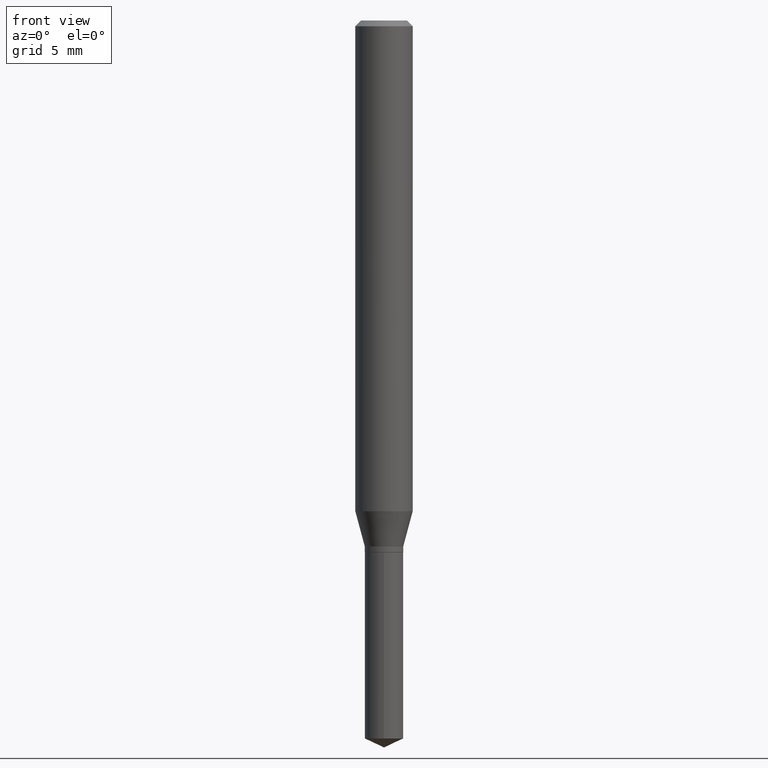
[diagram: clean part render]
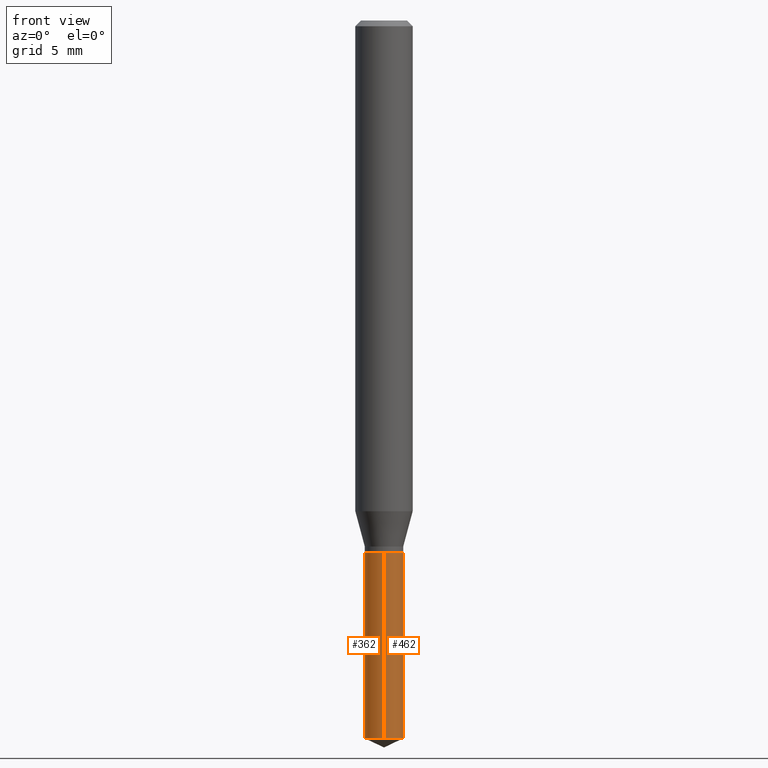
[diagram: same view with one multi-face feature highlighted, each face labeled with its STEP entity id]
A machine part, front view. The highlighted faces form ONE feature: a constant-radius fillet chain: 2 tangent blend faces with common blend radius 1.0046 mm. The faces share edges in the B-rep.
Their STEP definitions:
[1] entity #462 (Cylinder):
#1 = CARTESIAN_POINT ( 'NONE',  ( 2.810196519931463098E-16, 0.03954999999999617849, -1.094500000000000028 ) ) ;
#31 = DIRECTION ( 'NONE',  ( -2.445458899330790108E-29, 3.491495526022433205E-15, 1.000000000000000000 ) ) ;
#55 = EDGE_LOOP ( 'NONE', ( #273, #395, #119, #69 ) ) ;
#69 = ORIENTED_EDGE ( 'NONE', *, *, #412, .F. ) ;
#78 = LINE ( 'NONE', #210, #336 ) ;
#80 = VERTEX_POINT ( 'NONE', #215 ) ;
#84 = VECTOR ( 'NONE', #133, 39.37007874015748143 ) ;
#91 = FACE_OUTER_BOUND ( 'NONE', #55, .T. ) ;
#113 = AXIS2_PLACEMENT_3D ( 'NONE', #154, #31, #351 ) ;
#119 = ORIENTED_EDGE ( 'NONE', *, *, #217, .F. ) ;
#121 = AXIS2_PLACEMENT_3D ( 'NONE', #420, #315, #455 ) ;
#132 = DIRECTION ( 'NONE',  ( -2.445458899330790108E-29, 3.491495526022433205E-15, 1.000000000000000000 ) ) ;
#133 = DIRECTION ( 'NONE',  ( -2.445458899330790108E-29, 3.491495526022433599E-15, 1.000000000000000000 ) ) ;
#140 = LINE ( 'NONE', #1, #84 ) ;
#142 = DIRECTION ( 'NONE',  ( -6.982962677686265922E-15, -1.000000000000000000, 3.453663708804378272E-15 ) ) ;
#154 = CARTESIAN_POINT ( 'NONE',  ( 2.676565608369631794E-29, -3.821426325363822773E-15, -1.094499999999999806 ) ) ;
#208 = AXIS2_PLACEMENT_3D ( 'NONE', #440, #132, #142 ) ;
#210 = CARTESIAN_POINT ( 'NONE',  ( -2.761761739024651013E-16, -0.03955000000000382515, -1.094499999999999806 ) ) ;
#215 = CARTESIAN_POINT ( 'NONE',  ( 2.810196519931557268E-16, 0.03954999999999617849, -1.094500000000000028 ) ) ;
#217 = EDGE_CURVE ( 'NONE', #441, #80, #250, .T. ) ;
#250 = CIRCLE ( 'NONE', #208, 0.03955000000000000182 ) ;
#256 = DIRECTION ( 'NONE',  ( -2.445458899330790108E-29, 3.491495526022433599E-15, 1.000000000000000000 ) ) ;
#273 = ORIENTED_EDGE ( 'NONE', *, *, #300, .T. ) ;
#297 = CARTESIAN_POINT ( 'NONE',  ( 2.810196519931557761E-16, 0.03954999999999485316, -1.477657532119970085 ) ) ;
#300 = EDGE_CURVE ( 'NONE', #319, #461, #343, .T. ) ;
#315 = DIRECTION ( 'NONE',  ( -2.445458899330790108E-29, 3.491495526022433205E-15, 1.000000000000000000 ) ) ;
#319 = VERTEX_POINT ( 'NONE', #478 ) ;
#336 = VECTOR ( 'NONE', #256, 39.37007874015748143 ) ;
#343 = CIRCLE ( 'NONE', #121, 0.03955000000000000182 ) ;
#351 = DIRECTION ( 'NONE',  ( -6.982962677686265922E-15, -1.000000000000000000, 3.453663708804378272E-15 ) ) ;
#383 = CYLINDRICAL_SURFACE ( 'NONE', #113, 0.03955000000000000182 ) ;
#395 = ORIENTED_EDGE ( 'NONE', *, *, #402, .T. ) ;
#402 = EDGE_CURVE ( 'NONE', #461, #80, #140, .T. ) ;
#412 = EDGE_CURVE ( 'NONE', #319, #441, #78, .T. ) ;
#420 = CARTESIAN_POINT ( 'NONE',  ( 3.613561605138035759E-29, -5.159219134522494215E-15, -1.477657532119969863 ) ) ;
#440 = CARTESIAN_POINT ( 'NONE',  ( 2.676565608369631794E-29, -3.821426325363822773E-15, -1.094499999999999806 ) ) ;
#441 = VERTEX_POINT ( 'NONE', #465 ) ;
#455 = DIRECTION ( 'NONE',  ( -6.982962677686265922E-15, -1.000000000000000000, 6.907327417608756543E-15 ) ) ;
#461 = VERTEX_POINT ( 'NONE', #297 ) ;
#462 = ADVANCED_FACE ( 'NONE', ( #91 ), #383, .T. ) ;
#465 = CARTESIAN_POINT ( 'NONE',  ( -2.761761739024651013E-16, -0.03955000000000382515, -1.094499999999999806 ) ) ;
#478 = CARTESIAN_POINT ( 'NONE',  ( -2.761761739024557829E-16, -0.03955000000000517130, -1.477657532119969641 ) ) ;
[2] entity #362 (Cylinder):
#1 = CARTESIAN_POINT ( 'NONE',  ( 2.810196519931463098E-16, 0.03954999999999617849, -1.094500000000000028 ) ) ;
#5 = CARTESIAN_POINT ( 'NONE',  ( 2.676565608369631794E-29, -3.821426325363822773E-15, -1.094499999999999806 ) ) ;
#78 = LINE ( 'NONE', #210, #336 ) ;
#79 = DIRECTION ( 'NONE',  ( -6.982962677686265922E-15, -1.000000000000000000, 3.453663708804378272E-15 ) ) ;
#80 = VERTEX_POINT ( 'NONE', #215 ) ;
#84 = VECTOR ( 'NONE', #133, 39.37007874015748143 ) ;
#88 = ORIENTED_EDGE ( 'NONE', *, *, #402, .F. ) ;
#112 = CIRCLE ( 'NONE', #159, 0.03955000000000000182 ) ;
#114 = EDGE_CURVE ( 'NONE', #461, #319, #112, .T. ) ;
#122 = FACE_OUTER_BOUND ( 'NONE', #153, .T. ) ;
#133 = DIRECTION ( 'NONE',  ( -2.445458899330790108E-29, 3.491495526022433599E-15, 1.000000000000000000 ) ) ;
#140 = LINE ( 'NONE', #1, #84 ) ;
#143 = DIRECTION ( 'NONE',  ( -6.982962677686265922E-15, -1.000000000000000000, 6.907327417608756543E-15 ) ) ;
#153 = EDGE_LOOP ( 'NONE', ( #88, #161, #196, #237 ) ) ;
#159 = AXIS2_PLACEMENT_3D ( 'NONE', #382, #484, #143 ) ;
#161 = ORIENTED_EDGE ( 'NONE', *, *, #114, .T. ) ;
#196 = ORIENTED_EDGE ( 'NONE', *, *, #412, .T. ) ;
#198 = DIRECTION ( 'NONE',  ( -2.445458899330790108E-29, 3.491495526022433205E-15, 1.000000000000000000 ) ) ;
#200 = CYLINDRICAL_SURFACE ( 'NONE', #326, 0.03955000000000000182 ) ;
#210 = CARTESIAN_POINT ( 'NONE',  ( -2.761761739024651013E-16, -0.03955000000000382515, -1.094499999999999806 ) ) ;
#215 = CARTESIAN_POINT ( 'NONE',  ( 2.810196519931557268E-16, 0.03954999999999617849, -1.094500000000000028 ) ) ;
#237 = ORIENTED_EDGE ( 'NONE', *, *, #286, .F. ) ;
#256 = DIRECTION ( 'NONE',  ( -2.445458899330790108E-29, 3.491495526022433599E-15, 1.000000000000000000 ) ) ;
#271 = DIRECTION ( 'NONE',  ( -6.982962677686265922E-15, -1.000000000000000000, 3.453663708804378272E-15 ) ) ;
#281 = CARTESIAN_POINT ( 'NONE',  ( 2.676565608369631794E-29, -3.821426325363822773E-15, -1.094499999999999806 ) ) ;
#286 = EDGE_CURVE ( 'NONE', #80, #441, #477, .T. ) ;
#297 = CARTESIAN_POINT ( 'NONE',  ( 2.810196519931557761E-16, 0.03954999999999485316, -1.477657532119970085 ) ) ;
#319 = VERTEX_POINT ( 'NONE', #478 ) ;
#326 = AXIS2_PLACEMENT_3D ( 'NONE', #281, #198, #79 ) ;
#336 = VECTOR ( 'NONE', #256, 39.37007874015748143 ) ;
#362 = ADVANCED_FACE ( 'NONE', ( #122 ), #200, .T. ) ;
#374 = AXIS2_PLACEMENT_3D ( 'NONE', #5, #450, #271 ) ;
#382 = CARTESIAN_POINT ( 'NONE',  ( 3.613561605138035759E-29, -5.159219134522494215E-15, -1.477657532119969863 ) ) ;
#402 = EDGE_CURVE ( 'NONE', #461, #80, #140, .T. ) ;
#412 = EDGE_CURVE ( 'NONE', #319, #441, #78, .T. ) ;
#441 = VERTEX_POINT ( 'NONE', #465 ) ;
#450 = DIRECTION ( 'NONE',  ( -2.445458899330790108E-29, 3.491495526022433205E-15, 1.000000000000000000 ) ) ;
#461 = VERTEX_POINT ( 'NONE', #297 ) ;
#465 = CARTESIAN_POINT ( 'NONE',  ( -2.761761739024651013E-16, -0.03955000000000382515, -1.094499999999999806 ) ) ;
#477 = CIRCLE ( 'NONE', #374, 0.03955000000000000182 ) ;
#478 = CARTESIAN_POINT ( 'NONE',  ( -2.761761739024557829E-16, -0.03955000000000517130, -1.477657532119969641 ) ) ;
#484 = DIRECTION ( 'NONE',  ( -2.445458899330790108E-29, 3.491495526022433205E-15, 1.000000000000000000 ) ) ;